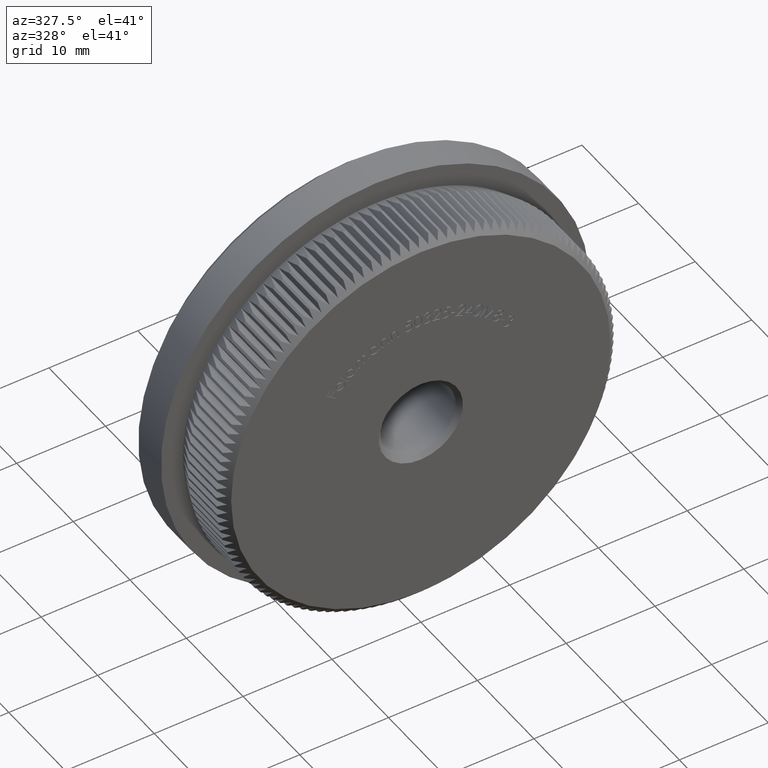
[diagram: clean part render]
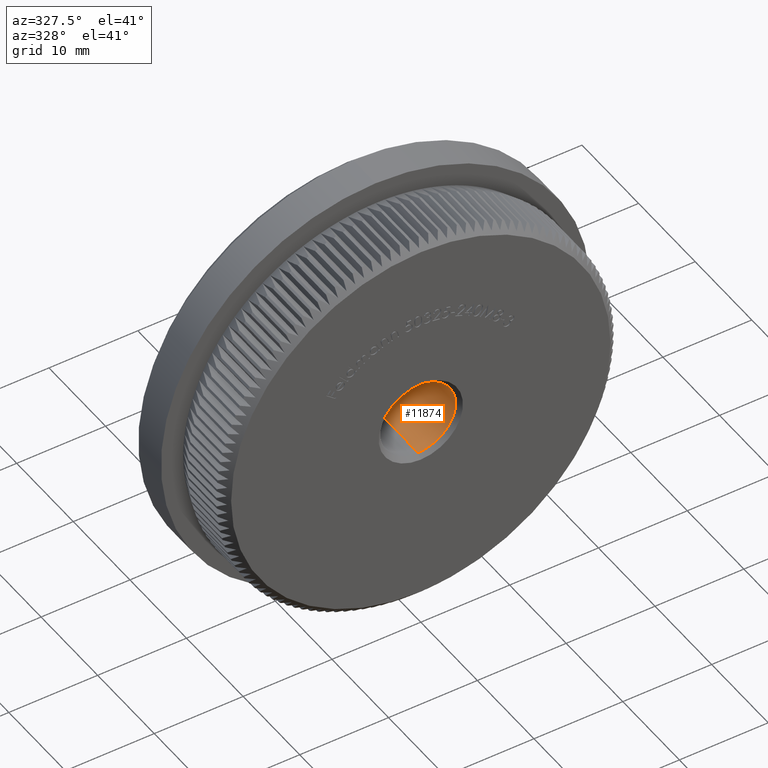
[diagram: same view with one face highlighted and labeled with its STEP entity id]
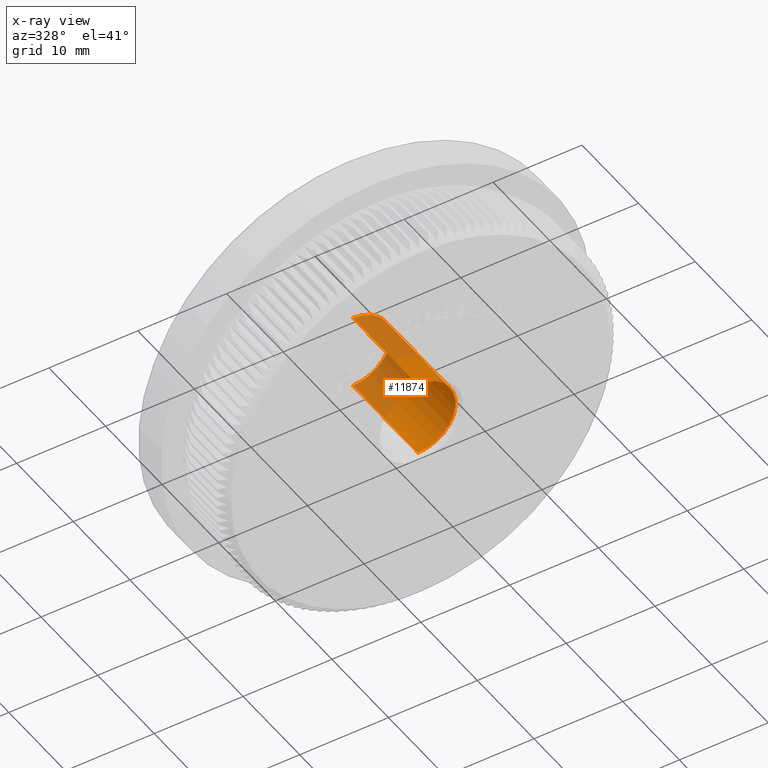
[diagram: x-ray of the same camera — body ghosted, the highlighted face saturated]
A machine part, auxiliary view. The second image highlights one B-rep face of the part: STEP entity #11874.
The next image is the same camera in x-ray: the body ghosted, the highlighted face saturated — about 44% of this face is hidden behind the body in this view.
In plain terms, the highlighted cylindrical surface (partial cylindrical patch) has radius 4.25 mm, axis along (-0, -1, -0).
Its self-contained STEP definition (entity closure, byte-faithful):
#1467 = AXIS2_PLACEMENT_3D ( 'NONE', #30473, #5352, #23303 ) ;
#1785 = LINE ( 'NONE', #29858, #5350 ) ;
#2107 = EDGE_CURVE ( 'NONE', #32636, #24276, #28994, .T. ) ;
#2494 = EDGE_CURVE ( 'NONE', #17953, #16911, #25418, .T. ) ;
#2867 = CARTESIAN_POINT ( 'NONE',  ( 5.204748896376248700E-016, 0.4999999999999943900, 4.249999999999997300 ) ) ;
#4324 = VECTOR ( 'NONE', #32405, 1000.000000000000000 ) ;
#4777 = DIRECTION ( 'NONE',  ( 0.0000000000000000000, 0.0000000000000000000, -1.000000000000000000 ) ) ;
#5350 = VECTOR ( 'NONE', #27312, 1000.000000000000000 ) ;
#5352 = DIRECTION ( 'NONE',  ( -0.0000000000000000000, 1.000000000000000000, -0.0000000000000000000 ) ) ;
#5473 = AXIS2_PLACEMENT_3D ( 'NONE', #7549, #27691, #4777 ) ;
#7250 = DIRECTION ( 'NONE',  ( 0.0000000000000000000, -1.000000000000000000, 0.0000000000000000000 ) ) ;
#7549 = CARTESIAN_POINT ( 'NONE',  ( 0.0000000000000000000, 0.0000000000000000000, 0.0000000000000000000 ) ) ;
#8643 = EDGE_CURVE ( 'NONE', #16911, #32636, #9858, .T. ) ;
#9858 = LINE ( 'NONE', #25122, #4324 ) ;
#10919 = ORIENTED_EDGE ( 'NONE', *, *, #2107, .T. ) ;
#11874 = ADVANCED_FACE ( 'NONE', ( #22373 ), #25098, .F. ) ;
#14858 = ORIENTED_EDGE ( 'NONE', *, *, #8643, .T. ) ;
#16357 = ORIENTED_EDGE ( 'NONE', *, *, #24638, .F. ) ;
#16911 = VERTEX_POINT ( 'NONE', #28800 ) ;
#17953 = VERTEX_POINT ( 'NONE', #25244 ) ;
#19636 = AXIS2_PLACEMENT_3D ( 'NONE', #27071, #7250, #32342 ) ;
#22373 = FACE_OUTER_BOUND ( 'NONE', #24699, .T. ) ;
#23303 = DIRECTION ( 'NONE',  ( 0.0000000000000000000, 0.0000000000000000000, 1.000000000000000000 ) ) ;
#24276 = VERTEX_POINT ( 'NONE', #2867 ) ;
#24638 = EDGE_CURVE ( 'NONE', #17953, #24276, #1785, .T. ) ;
#24699 = EDGE_LOOP ( 'NONE', ( #16357, #28266, #14858, #10919 ) ) ;
#25098 = CYLINDRICAL_SURFACE ( 'NONE', #5473, 4.249999999999997300 ) ;
#25122 = CARTESIAN_POINT ( 'NONE',  ( 0.0000000000000000000, 0.0000000000000000000, -4.249999999999997300 ) ) ;
#25244 = CARTESIAN_POINT ( 'NONE',  ( 5.204748896376248700E-016, 11.99999999999998000, 4.249999999999997300 ) ) ;
#25418 = CIRCLE ( 'NONE', #1467, 4.249999999999997300 ) ;
#26676 = CARTESIAN_POINT ( 'NONE',  ( 0.0000000000000000000, 0.4999999999999943900, -4.249999999999997300 ) ) ;
#27071 = CARTESIAN_POINT ( 'NONE',  ( 0.0000000000000000000, 0.4999999999999943900, 0.0000000000000000000 ) ) ;
#27312 = DIRECTION ( 'NONE',  ( -0.0000000000000000000, -1.000000000000000000, -0.0000000000000000000 ) ) ;
#27691 = DIRECTION ( 'NONE',  ( -0.0000000000000000000, -1.000000000000000000, -0.0000000000000000000 ) ) ;
#28266 = ORIENTED_EDGE ( 'NONE', *, *, #2494, .T. ) ;
#28800 = CARTESIAN_POINT ( 'NONE',  ( 0.0000000000000000000, 11.99999999999998000, -4.249999999999997300 ) ) ;
#28994 = CIRCLE ( 'NONE', #19636, 4.249999999999997300 ) ;
#29858 = CARTESIAN_POINT ( 'NONE',  ( 5.204748896376248700E-016, 0.0000000000000000000, 4.249999999999997300 ) ) ;
#30473 = CARTESIAN_POINT ( 'NONE',  ( 0.0000000000000000000, 11.99999999999998000, 0.0000000000000000000 ) ) ;
#32342 = DIRECTION ( 'NONE',  ( 0.0000000000000000000, 0.0000000000000000000, -1.000000000000000000 ) ) ;
#32405 = DIRECTION ( 'NONE',  ( -0.0000000000000000000, -1.000000000000000000, -0.0000000000000000000 ) ) ;
#32636 = VERTEX_POINT ( 'NONE', #26676 ) ;